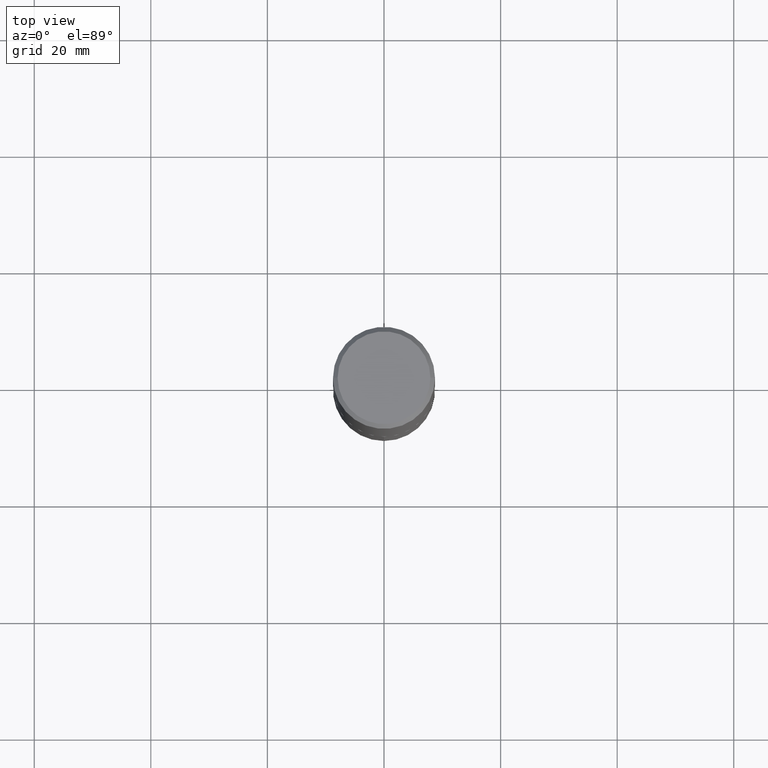
[diagram: clean part render]
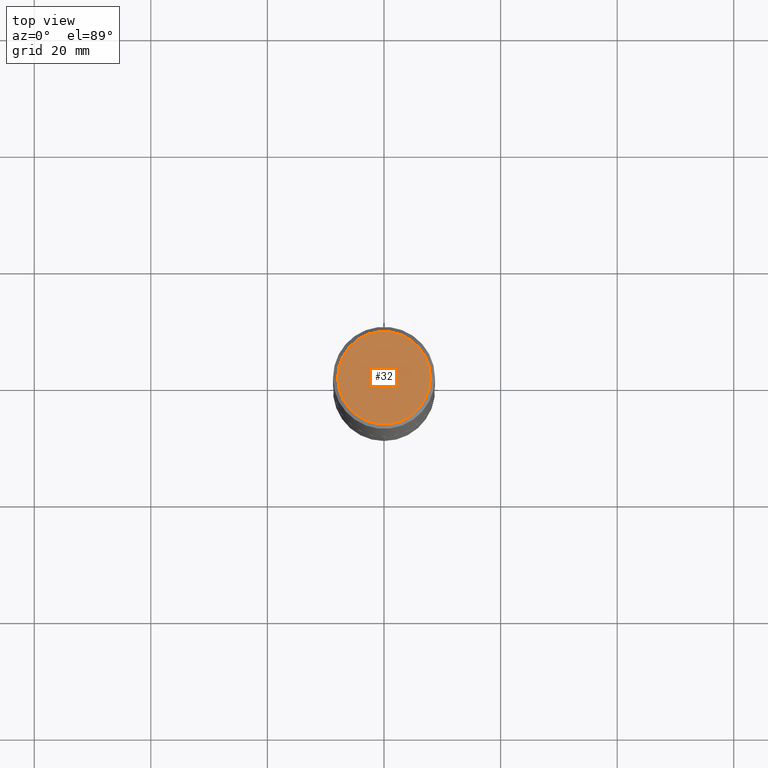
[diagram: same view with one face highlighted and labeled with its STEP entity id]
A machine part, top view. The second image highlights one B-rep face of the part: STEP entity #32.
In plain terms, the highlighted planar face has unit normal (0, -0, -1).
Its self-contained STEP definition (entity closure, byte-faithful):
#24 = DIRECTION ( 'NONE',  ( -2.445468806185136597E-29, 3.491481338843145583E-15, 1.000000000000000000 ) ) ;
#32 = ADVANCED_FACE ( 'NONE', ( #308 ), #43, .F. ) ;
#40 = DIRECTION ( 'NONE',  ( 2.438088387897960049E-29, -3.491481338843145188E-15, -1.000000000000000000 ) ) ;
#43 = PLANE ( 'NONE',  #161 ) ;
#48 = CARTESIAN_POINT ( 'NONE',  ( -1.768450389859456785E-46, 2.524878468802161695E-32, 7.231539348965118234E-18 ) ) ;
#58 = VERTEX_POINT ( 'NONE', #318 ) ;
#79 = DIRECTION ( 'NONE',  ( -2.445468806185136597E-29, 3.491481338843145583E-15, 1.000000000000000000 ) ) ;
#101 = EDGE_LOOP ( 'NONE', ( #297, #385 ) ) ;
#133 = DIRECTION ( 'NONE',  ( 1.000000000000000000, -6.982962677686268288E-15, 4.876216290940278169E-29 ) ) ;
#153 = DIRECTION ( 'NONE',  ( -1.000000000000000000, 6.982962677686265922E-15, -4.876176775795935793E-29 ) ) ;
#161 = AXIS2_PLACEMENT_3D ( 'NONE', #247, #40, #153 ) ;
#207 = AXIS2_PLACEMENT_3D ( 'NONE', #48, #79, #133 ) ;
#217 = EDGE_CURVE ( 'NONE', #58, #369, #312, .T. ) ;
#228 = AXIS2_PLACEMENT_3D ( 'NONE', #233, #24, #261 ) ;
#233 = CARTESIAN_POINT ( 'NONE',  ( -1.768450389859456785E-46, 2.524878468802161695E-32, 7.231539348965118234E-18 ) ) ;
#247 = CARTESIAN_POINT ( 'NONE',  ( -8.842251949297283926E-47, 1.262439234401080848E-32, 3.615769674482559117E-18 ) ) ;
#261 = DIRECTION ( 'NONE',  ( 1.000000000000000000, -6.982962677686268288E-15, 4.876216290940278169E-29 ) ) ;
#297 = ORIENTED_EDGE ( 'NONE', *, *, #217, .T. ) ;
#308 = FACE_OUTER_BOUND ( 'NONE', #101, .T. ) ;
#312 = CIRCLE ( 'NONE', #228, 0.3132499999999999729 ) ;
#318 = CARTESIAN_POINT ( 'NONE',  ( -0.3132499999999999729, 2.241967454704647014E-15, 7.231539348949630676E-18 ) ) ;
#326 = CARTESIAN_POINT ( 'NONE',  ( 0.3132499999999999729, -2.310800674936537201E-15, 7.231539348980846149E-18 ) ) ;
#346 = CIRCLE ( 'NONE', #207, 0.3132499999999999729 ) ;
#348 = EDGE_CURVE ( 'NONE', #369, #58, #346, .T. ) ;
#369 = VERTEX_POINT ( 'NONE', #326 ) ;
#385 = ORIENTED_EDGE ( 'NONE', *, *, #348, .T. ) ;